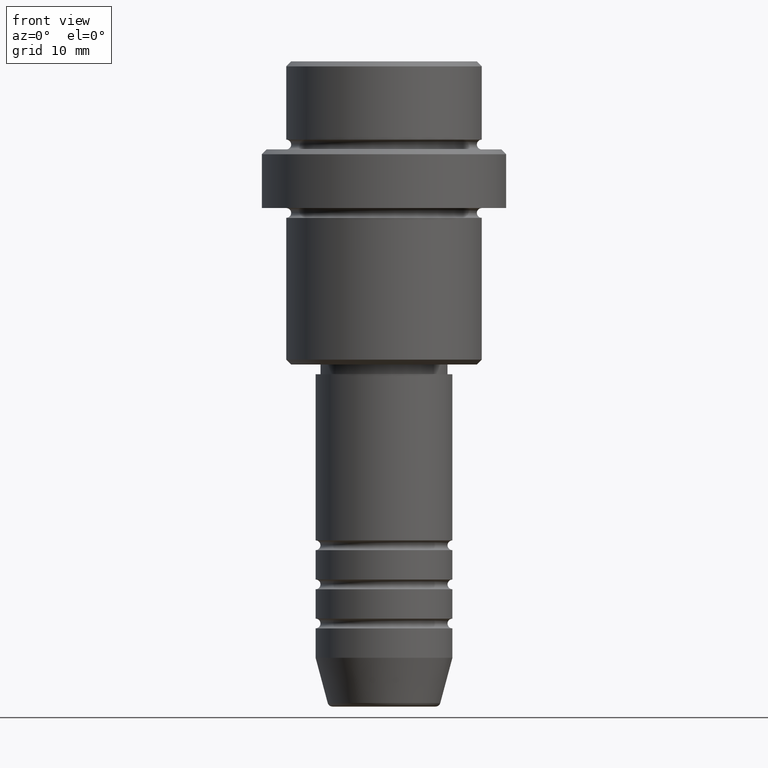
[diagram: clean part render]
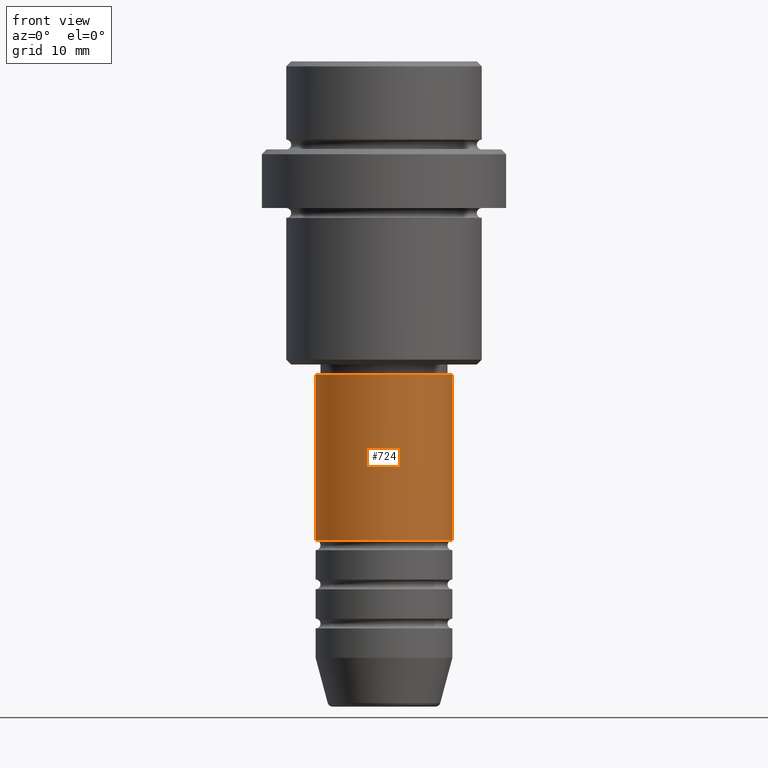
[diagram: same view with one face highlighted and labeled with its STEP entity id]
A machine part, front view. The second image highlights one B-rep face of the part: STEP entity #724.
In plain terms, the highlighted cylindrical surface (partial cylindrical patch) has radius 7 mm, axis along (-0, -0, 1).
Its self-contained STEP definition (entity closure, byte-faithful):
#30 = VERTEX_POINT ( 'NONE', #1060 ) ;
#32 = EDGE_CURVE ( 'NONE', #744, #30, #1022, .T. ) ;
#89 = EDGE_CURVE ( 'NONE', #96, #266, #309, .T. ) ;
#96 = VERTEX_POINT ( 'NONE', #856 ) ;
#150 = CARTESIAN_POINT ( 'NONE',  ( 7.000000000000000000, 0.000000000000000000, -32.00000000000000000 ) ) ;
#152 = LINE ( 'NONE', #462, #495 ) ;
#153 = VECTOR ( 'NONE', #644, 1000.000000000000000 ) ;
#178 = AXIS2_PLACEMENT_3D ( 'NONE', #712, #969, #1235 ) ;
#266 = VERTEX_POINT ( 'NONE', #150 ) ;
#309 = CIRCLE ( 'NONE', #806, 7.000000000000000000 ) ;
#342 = CARTESIAN_POINT ( 'NONE',  ( 7.000000000000000000, 0.000000000000000000, 0.000000000000000000 ) ) ;
#355 = EDGE_CURVE ( 'NONE', #744, #96, #152, .T. ) ;
#457 = ORIENTED_EDGE ( 'NONE', *, *, #1133, .T. ) ;
#462 = CARTESIAN_POINT ( 'NONE',  ( -7.000000000000000000, 8.572527594031473190E-16, 0.000000000000000000 ) ) ;
#468 = FACE_OUTER_BOUND ( 'NONE', #643, .T. ) ;
#495 = VECTOR ( 'NONE', #1244, 1000.000000000000000 ) ;
#639 = LINE ( 'NONE', #342, #153 ) ;
#643 = EDGE_LOOP ( 'NONE', ( #1328, #1137, #457, #917 ) ) ;
#644 = DIRECTION ( 'NONE',  ( -0.000000000000000000, -0.000000000000000000, 1.000000000000000000 ) ) ;
#674 = CARTESIAN_POINT ( 'NONE',  ( -7.000000000000000000, 8.572527594031473190E-16, -48.99999999999989342 ) ) ;
#712 = CARTESIAN_POINT ( 'NONE',  ( 0.000000000000000000, 0.000000000000000000, 0.000000000000000000 ) ) ;
#724 = ADVANCED_FACE ( 'NONE', ( #468 ), #1175, .T. ) ;
#725 = CARTESIAN_POINT ( 'NONE',  ( 0.000000000000000000, 0.000000000000000000, -48.99999999999989342 ) ) ;
#744 = VERTEX_POINT ( 'NONE', #674 ) ;
#804 = DIRECTION ( 'NONE',  ( -0.000000000000000000, -0.000000000000000000, 1.000000000000000000 ) ) ;
#806 = AXIS2_PLACEMENT_3D ( 'NONE', #1151, #1375, #1200 ) ;
#856 = CARTESIAN_POINT ( 'NONE',  ( -7.000000000000000000, 8.572527594031473190E-16, -32.00000000000000000 ) ) ;
#917 = ORIENTED_EDGE ( 'NONE', *, *, #89, .F. ) ;
#969 = DIRECTION ( 'NONE',  ( -0.000000000000000000, -0.000000000000000000, 1.000000000000000000 ) ) ;
#1022 = CIRCLE ( 'NONE', #1065, 7.000000000000000000 ) ;
#1060 = CARTESIAN_POINT ( 'NONE',  ( 7.000000000000000000, 0.000000000000000000, -48.99999999999989342 ) ) ;
#1065 = AXIS2_PLACEMENT_3D ( 'NONE', #725, #804, #1380 ) ;
#1133 = EDGE_CURVE ( 'NONE', #30, #266, #639, .T. ) ;
#1137 = ORIENTED_EDGE ( 'NONE', *, *, #32, .T. ) ;
#1151 = CARTESIAN_POINT ( 'NONE',  ( 0.000000000000000000, 0.000000000000000000, -32.00000000000000000 ) ) ;
#1175 = CYLINDRICAL_SURFACE ( 'NONE', #178, 7.000000000000000000 ) ;
#1200 = DIRECTION ( 'NONE',  ( 1.000000000000000000, 0.000000000000000000, 0.000000000000000000 ) ) ;
#1235 = DIRECTION ( 'NONE',  ( 1.000000000000000000, 0.000000000000000000, 0.000000000000000000 ) ) ;
#1244 = DIRECTION ( 'NONE',  ( -0.000000000000000000, -0.000000000000000000, 1.000000000000000000 ) ) ;
#1328 = ORIENTED_EDGE ( 'NONE', *, *, #355, .F. ) ;
#1375 = DIRECTION ( 'NONE',  ( -0.000000000000000000, -0.000000000000000000, 1.000000000000000000 ) ) ;
#1380 = DIRECTION ( 'NONE',  ( 1.000000000000000000, 0.000000000000000000, 0.000000000000000000 ) ) ;